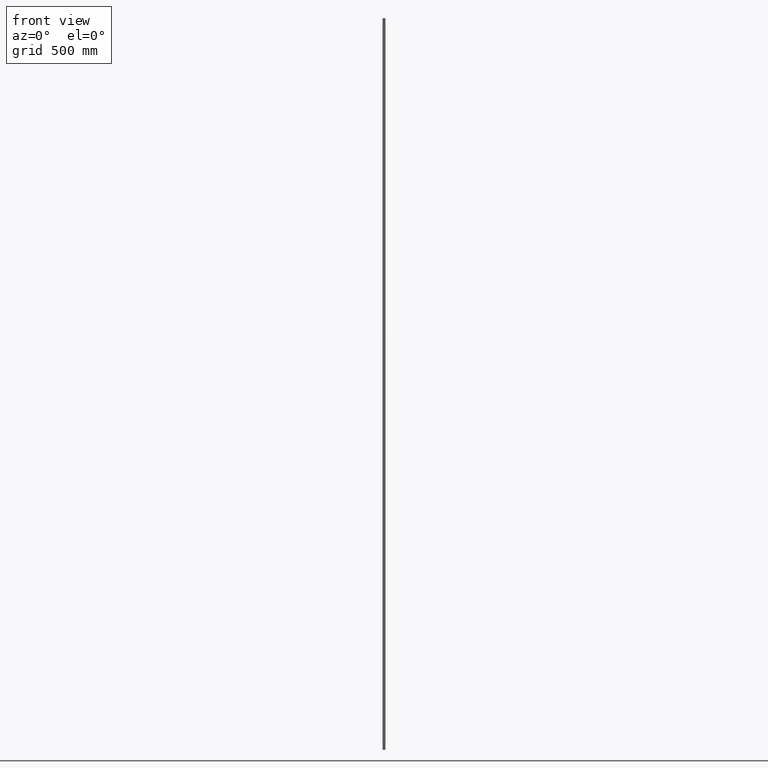
[diagram: clean part render]
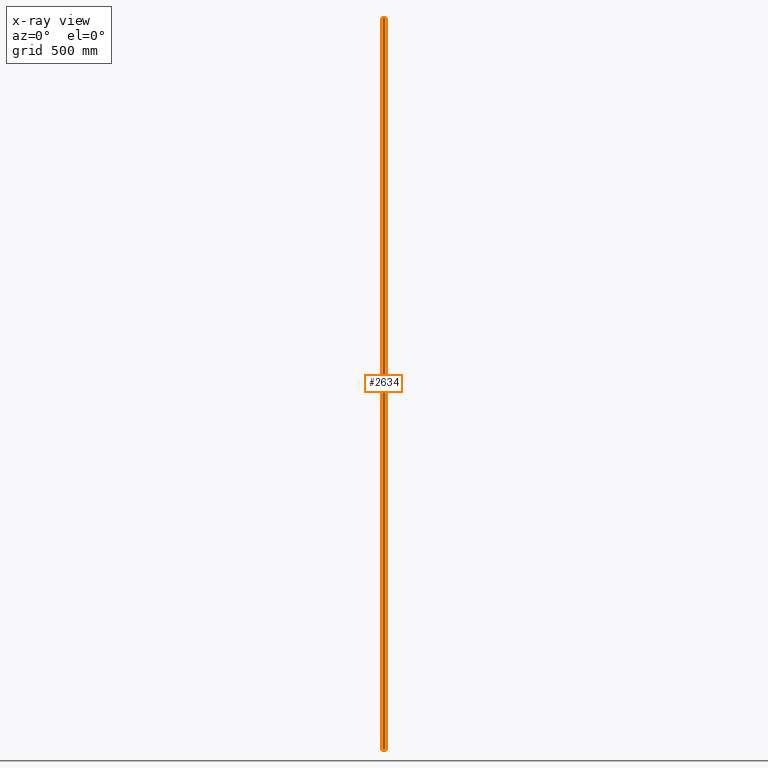
[diagram: x-ray — body ghosted, one internal face saturated and labeled with its STEP entity id]
A machine part, front view, then the same camera in x-ray: the body is ghosted and one INTERNAL B-rep face — a face not visible from any outside direction — is saturated and labeled: STEP entity #2634.
In plain terms, the highlighted planar face has unit normal (0, -1, 0).
Its self-contained STEP definition (entity closure, byte-faithful):
#709 = EDGE_CURVE ( 'NONE', #4896, #3480, #4641, .T. ) ;
#1541 = FACE_OUTER_BOUND ( 'NONE', #10856, .T. ) ;
#2634 = ADVANCED_FACE ( 'NONE', ( #1541 ), #8671, .F. ) ;
#3376 = CARTESIAN_POINT ( 'NONE',  ( -6.000000000000000000, 5.999999999999999112, -1500.000000000000000 ) ) ;
#3480 = VERTEX_POINT ( 'NONE', #3376 ) ;
#3613 = CARTESIAN_POINT ( 'NONE',  ( -6.000000000000000000, 5.999999999999999112, 1500.000000000000000 ) ) ;
#3730 = EDGE_CURVE ( 'NONE', #8281, #4896, #6738, .T. ) ;
#4513 = VECTOR ( 'NONE', #9984, 1000.000000000000000 ) ;
#4641 = LINE ( 'NONE', #4890, #13035 ) ;
#4890 = CARTESIAN_POINT ( 'NONE',  ( -6.000000000000000000, 5.999999999999999112, -1500.000000000000000 ) ) ;
#4896 = VERTEX_POINT ( 'NONE', #9788 ) ;
#4991 = EDGE_CURVE ( 'NONE', #11046, #3480, #9614, .T. ) ;
#5398 = CARTESIAN_POINT ( 'NONE',  ( -6.000000000000000000, 5.999999999999999112, 1500.000000000000000 ) ) ;
#5422 = VECTOR ( 'NONE', #9740, 1000.000000000000000 ) ;
#6164 = AXIS2_PLACEMENT_3D ( 'NONE', #3613, #9835, #10764 ) ;
#6169 = CARTESIAN_POINT ( 'NONE',  ( -6.000000000000000000, 5.999999999999999112, 1500.000000000000000 ) ) ;
#6738 = LINE ( 'NONE', #7810, #5422 ) ;
#6797 = CARTESIAN_POINT ( 'NONE',  ( -6.000000000000000000, 5.999999999999999112, 1500.000000000000000 ) ) ;
#6888 = VECTOR ( 'NONE', #8487, 1000.000000000000000 ) ;
#7382 = CARTESIAN_POINT ( 'NONE',  ( 5.999999999999999112, 5.999999999999999112, 1500.000000000000000 ) ) ;
#7810 = CARTESIAN_POINT ( 'NONE',  ( 5.999999999999999112, 5.999999999999999112, 1500.000000000000000 ) ) ;
#8281 = VERTEX_POINT ( 'NONE', #7382 ) ;
#8487 = DIRECTION ( 'NONE',  ( -0.000000000000000000, -0.000000000000000000, -1.000000000000000000 ) ) ;
#8671 = PLANE ( 'NONE',  #6164 ) ;
#8887 = ORIENTED_EDGE ( 'NONE', *, *, #709, .T. ) ;
#9049 = LINE ( 'NONE', #6797, #4513 ) ;
#9229 = ORIENTED_EDGE ( 'NONE', *, *, #4991, .F. ) ;
#9614 = LINE ( 'NONE', #5398, #6888 ) ;
#9740 = DIRECTION ( 'NONE',  ( -0.000000000000000000, -0.000000000000000000, -1.000000000000000000 ) ) ;
#9788 = CARTESIAN_POINT ( 'NONE',  ( 5.999999999999999112, 5.999999999999999112, -1500.000000000000000 ) ) ;
#9835 = DIRECTION ( 'NONE',  ( 0.000000000000000000, -1.000000000000000000, 0.000000000000000000 ) ) ;
#9984 = DIRECTION ( 'NONE',  ( -1.000000000000000000, -0.000000000000000000, -0.000000000000000000 ) ) ;
#10117 = ORIENTED_EDGE ( 'NONE', *, *, #3730, .T. ) ;
#10441 = EDGE_CURVE ( 'NONE', #8281, #11046, #9049, .T. ) ;
#10764 = DIRECTION ( 'NONE',  ( 0.000000000000000000, -0.000000000000000000, -1.000000000000000000 ) ) ;
#10856 = EDGE_LOOP ( 'NONE', ( #8887, #9229, #12789, #10117 ) ) ;
#11046 = VERTEX_POINT ( 'NONE', #6169 ) ;
#11056 = DIRECTION ( 'NONE',  ( -1.000000000000000000, -0.000000000000000000, -0.000000000000000000 ) ) ;
#12789 = ORIENTED_EDGE ( 'NONE', *, *, #10441, .F. ) ;
#13035 = VECTOR ( 'NONE', #11056, 1000.000000000000000 ) ;